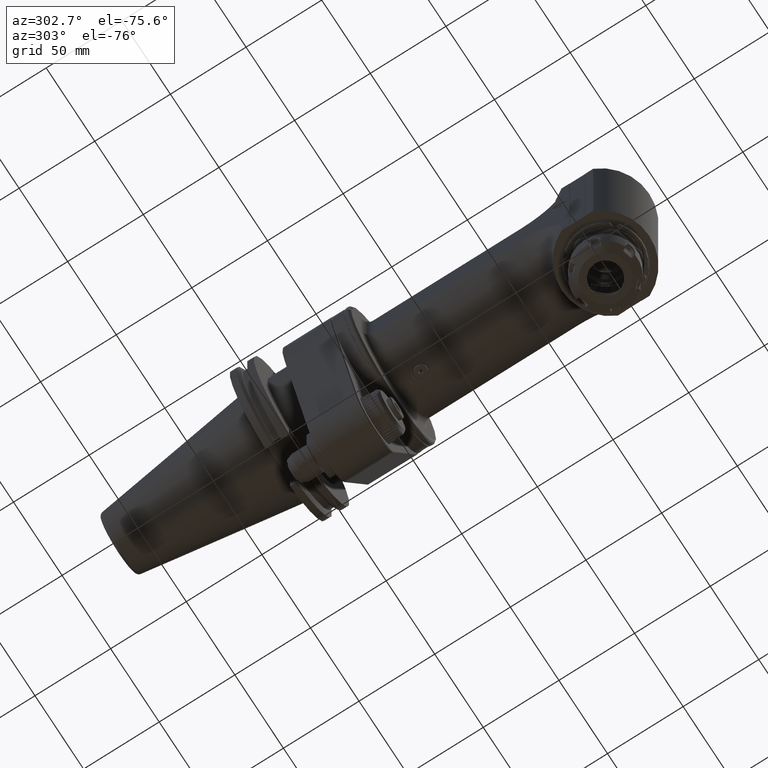
[diagram: clean part render]
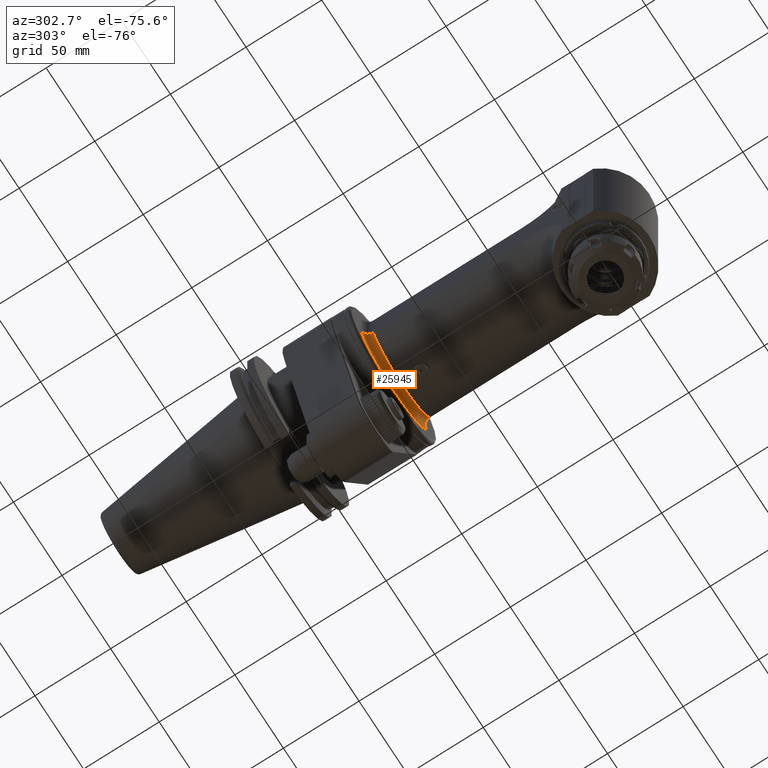
[diagram: same view with one face highlighted and labeled with its STEP entity id]
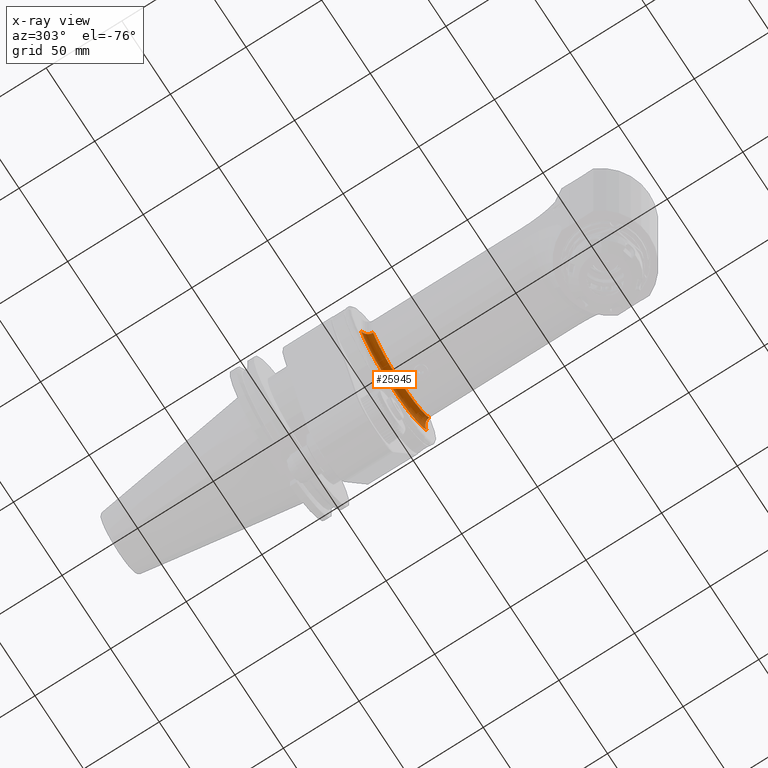
[diagram: x-ray of the same camera — body ghosted, the highlighted face saturated]
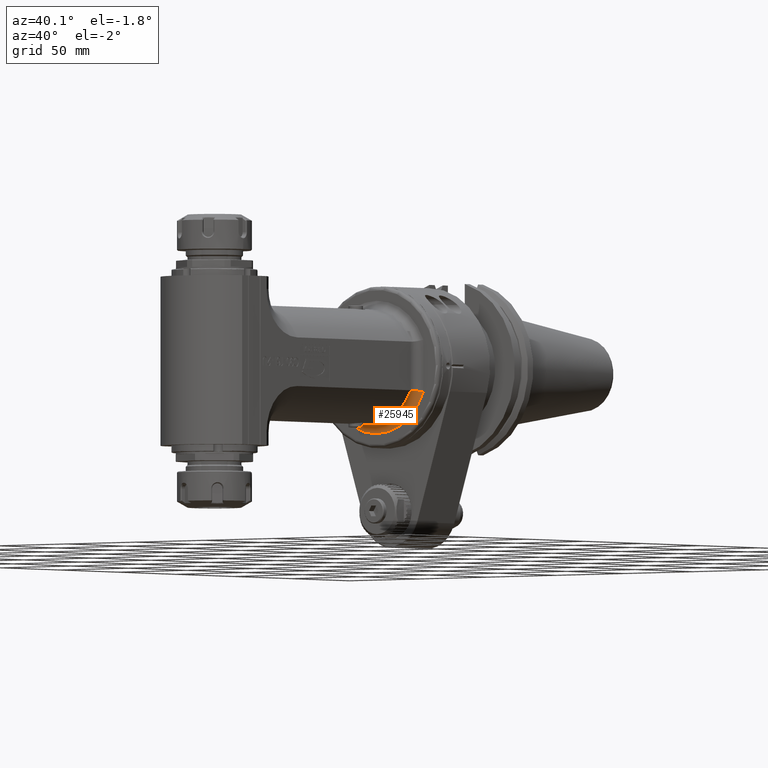
[diagram: same view with one face highlighted and labeled with its STEP entity id]
A machine part, auxiliary view. The second image highlights one B-rep face of the part: STEP entity #25945.
The next image is the same camera in x-ray: the body ghosted, the highlighted face saturated — about 0% of this face is hidden behind the body in this view.
A second angle (auxiliary view) of the same face is appended — the face is thin or edge-on in the first view.
In plain terms, the highlighted toroidal blend (fillet) surface has major radius 37 mm and minor (blend) radius 5 mm.
Its self-contained STEP definition (entity closure, byte-faithful):
#416=TOROIDAL_SURFACE('',#28151,37.,5.);
#1628=CIRCLE('',#28150,32.);
#1629=CIRCLE('',#28152,37.);
#2344=B_SPLINE_CURVE_WITH_KNOTS('',3,(#42059,#42060,#42061,#42062,#42063,
#42064,#42065,#42066,#42067,#42068,#42069,#42070,#42071,#42072,#42073,#42074,
#42075,#42076,#42077,#42078,#42079,#42080,#42081,#42082,#42083,#42084,#42085,
#42086,#42087,#42088,#42089,#42090,#42091,#42092,#42093,#42094,#42095,#42096,
#42097,#42098,#42099,#42100,#42101,#42102,#42103,#42104,#42105,#42106,#42107,
#42108,#42109,#42110,#42111,#42112,#42113,#42114,#42115,#42116,#42117,#42118,
#42119,#42120,#42121,#42122,#42123,#42124,#42125,#42126,#42127,#42128,#42129,
#42130,#42131,#42132,#42133,#42134,#42135,#42136,#42137,#42138,#42139,#42140,
#42141,#42142,#42143,#42144,#42145,#42146,#42147,#42148,#42149,#42150,#42151,
#42152,#42153,#42154,#42155,#42156,#42157,#42158,#42159,#42160,#42161),
 .UNSPECIFIED.,.F.,.F.,(4,3,3,3,3,3,3,3,3,3,3,3,3,3,3,3,3,3,3,3,3,3,3,3,
3,3,3,3,3,3,3,3,3,3,4),(0.,0.02941176470588,0.05882352941176,0.08823529411765,
0.1176470588235,0.1470588235294,0.1764705882353,0.2058823529412,0.2352941176471,
0.2647058823529,0.2941176470588,0.3235294117647,0.3529411764706,0.3823529411765,
0.4117647058824,0.4411764705882,0.4705882352941,0.5,0.5294117647059,0.5588235294118,
0.5882352941176,0.6176470588235,0.6470588235294,0.6764705882353,0.7058823529412,
0.7352941176471,0.7647058823529,0.7941176470588,0.8235294117647,0.8529411764706,
0.8823529411765,0.9117647058824,0.9411764705882,0.9705882352941,1.),
 .UNSPECIFIED.);
#2345=B_SPLINE_CURVE_WITH_KNOTS('',3,(#42164,#42165,#42166,#42167,#42168,
#42169,#42170,#42171,#42172,#42173,#42174,#42175,#42176,#42177,#42178,#42179,
#42180,#42181,#42182,#42183,#42184,#42185,#42186,#42187,#42188,#42189,#42190,
#42191,#42192,#42193,#42194,#42195,#42196,#42197,#42198,#42199,#42200,#42201,
#42202,#42203,#42204,#42205,#42206,#42207,#42208,#42209,#42210,#42211,#42212,
#42213,#42214,#42215,#42216,#42217,#42218,#42219,#42220,#42221,#42222,#42223,
#42224,#42225,#42226,#42227,#42228,#42229,#42230,#42231,#42232,#42233,#42234,
#42235,#42236,#42237,#42238,#42239,#42240,#42241,#42242,#42243,#42244,#42245,
#42246,#42247,#42248,#42249,#42250,#42251,#42252,#42253,#42254,#42255,#42256,
#42257,#42258,#42259,#42260,#42261,#42262,#42263,#42264,#42265,#42266),
 .UNSPECIFIED.,.F.,.F.,(4,3,3,3,3,3,3,3,3,3,3,3,3,3,3,3,3,3,3,3,3,3,3,3,
3,3,3,3,3,3,3,3,3,3,4),(0.,0.02941176470588,0.05882352941176,0.08823529411765,
0.1176470588235,0.1470588235294,0.1764705882353,0.2058823529412,0.2352941176471,
0.2647058823529,0.2941176470588,0.3235294117647,0.3529411764706,0.3823529411765,
0.4117647058824,0.4411764705882,0.4705882352941,0.5,0.5294117647059,0.5588235294118,
0.5882352941176,0.6176470588235,0.6470588235294,0.6764705882353,0.7058823529412,
0.7352941176471,0.7647058823529,0.7941176470588,0.8235294117647,0.8529411764706,
0.8823529411765,0.9117647058824,0.9411764705882,0.9705882352941,1.),
 .UNSPECIFIED.);
#3610=FACE_OUTER_BOUND('',#5221,.T.);
#5221=EDGE_LOOP('',(#19799,#19800,#19801,#19802));
#11199=VERTEX_POINT('',#41542);
#11346=VERTEX_POINT('',#41982);
#11352=VERTEX_POINT('',#42058);
#11353=VERTEX_POINT('',#42162);
#14455=EDGE_CURVE('',#11199,#11346,#1628,.T.);
#14458=EDGE_CURVE('',#11346,#11352,#2344,.T.);
#14459=EDGE_CURVE('',#11353,#11352,#1629,.T.);
#14460=EDGE_CURVE('',#11199,#11353,#2345,.T.);
#19799=ORIENTED_EDGE('',*,*,#14455,.T.);
#19800=ORIENTED_EDGE('',*,*,#14458,.T.);
#19801=ORIENTED_EDGE('',*,*,#14459,.F.);
#19802=ORIENTED_EDGE('',*,*,#14460,.F.);
#25945=ADVANCED_FACE('',(#3610),#416,.F.);
#28150=AXIS2_PLACEMENT_3D('',#42017,#32784,#32785);
#28151=AXIS2_PLACEMENT_3D('',#42057,#32786,#32787);
#28152=AXIS2_PLACEMENT_3D('',#42163,#32788,#32789);
#32784=DIRECTION('center_axis',(0.,1.,0.));
#32785=DIRECTION('ref_axis',(0.906250000000018,0.,-0.422742164327108));
#32786=DIRECTION('center_axis',(0.,-1.,0.));
#32787=DIRECTION('ref_axis',(0.999996080002561,0.,-0.00279999634133489));
#32788=DIRECTION('center_axis',(0.,1.,0.));
#32789=DIRECTION('ref_axis',(0.918891136606388,0.,-0.394511190039295));
#41542=CARTESIAN_POINT('',(29.,-41.8,-13.52774925847));
#41982=CARTESIAN_POINT('',(-29.,-41.8,-13.52774925847));
#42017=CARTESIAN_POINT('Origin',(0.,-41.8,0.));
#42057=CARTESIAN_POINT('Origin',(0.,-41.8,0.));
#42058=CARTESIAN_POINT('',(-34.000000010906,-36.8,-14.5945194662715));
#42059=CARTESIAN_POINT('Ctrl Pts',(-29.,-41.8,-13.52774925847));
#42060=CARTESIAN_POINT('Ctrl Pts',(-29.,-41.72418192508,-13.52774925847));
#42061=CARTESIAN_POINT('Ctrl Pts',(-29.0017244290842,-41.6483472502185,
-13.52813157057));
#42062=CARTESIAN_POINT('Ctrl Pts',(-29.0051760601472,-41.5725493243067,
-13.5288970859));
#42063=CARTESIAN_POINT('Ctrl Pts',(-29.0086276912102,-41.4967513983949,
-13.52966260123));
#42064=CARTESIAN_POINT('Ctrl Pts',(-29.0138080622443,-41.4209902589951,
-13.53081131979));
#42065=CARTESIAN_POINT('Ctrl Pts',(-29.0207071536495,-41.34542024871,-13.5323406298383));
#42066=CARTESIAN_POINT('Ctrl Pts',(-29.0276062450548,-41.2698502384248,
-13.5338699398867));
#42067=CARTESIAN_POINT('Ctrl Pts',(-29.0362219637616,-41.1944711489364,
-13.5357798414233));
#42068=CARTESIAN_POINT('Ctrl Pts',(-29.0465521118748,-41.1192988764313,
-13.5380690156067));
#42069=CARTESIAN_POINT('Ctrl Pts',(-29.056882259988,-41.0441266039263,-13.54035818979));
#42070=CARTESIAN_POINT('Ctrl Pts',(-29.0689274042206,-40.9691612843078,
-13.54302663662));
#42071=CARTESIAN_POINT('Ctrl Pts',(-29.0826844002213,-40.8944574597664,
-13.546073468035));
#42072=CARTESIAN_POINT('Ctrl Pts',(-29.096441396222,-40.819753635225,-13.54912029945));
#42073=CARTESIAN_POINT('Ctrl Pts',(-29.1119117771607,-40.7453115407275,
-13.55254551545));
#42074=CARTESIAN_POINT('Ctrl Pts',(-29.1290656058376,-40.6712847446032,
-13.5563414546483));
#42075=CARTESIAN_POINT('Ctrl Pts',(-29.1462194345144,-40.5972579484788,
-13.5601373938467));
#42076=CARTESIAN_POINT('Ctrl Pts',(-29.1650543798995,-40.5236459037193,
-13.5643040562433));
#42077=CARTESIAN_POINT('Ctrl Pts',(-29.1855727687842,-40.4504480612707,
-13.5688406510167));
#42078=CARTESIAN_POINT('Ctrl Pts',(-29.2060911576689,-40.3772502188222,
-13.57337724579));
#42079=CARTESIAN_POINT('Ctrl Pts',(-29.2282941121811,-40.304466951918,-13.57828377294));
#42080=CARTESIAN_POINT('Ctrl Pts',(-29.2521666572474,-40.2321739415846,
-13.58355623331));
#42081=CARTESIAN_POINT('Ctrl Pts',(-29.2760392023136,-40.1598809312512,
-13.58882869368));
#42082=CARTESIAN_POINT('Ctrl Pts',(-29.3015824387927,-40.0880784795547,
-13.59446708727));
#42083=CARTESIAN_POINT('Ctrl Pts',(-29.3287483717044,-40.0169104831372,
-13.6004591918867));
#42084=CARTESIAN_POINT('Ctrl Pts',(-29.3559143046161,-39.9457424867199,
-13.6064512965033));
#42085=CARTESIAN_POINT('Ctrl Pts',(-29.3847005911779,-39.8752080605227,
-13.6127971121467));
#42086=CARTESIAN_POINT('Ctrl Pts',(-29.4151160974488,-39.8052971148246,
-13.61949692847));
#42087=CARTESIAN_POINT('Ctrl Pts',(-29.4455316037199,-39.7353861691262,
-13.6261967447933));
#42088=CARTESIAN_POINT('Ctrl Pts',(-29.4775778852677,-39.6660994356747,
-13.6332505617967));
#42089=CARTESIAN_POINT('Ctrl Pts',(-29.5112213414089,-39.5975318040487,
-13.640649839665));
#42090=CARTESIAN_POINT('Ctrl Pts',(-29.5448647975502,-39.5289641724226,
-13.6480491175333));
#42091=CARTESIAN_POINT('Ctrl Pts',(-29.5801060364039,-39.4611158669186,
-13.6557938562667));
#42092=CARTESIAN_POINT('Ctrl Pts',(-29.6168826856514,-39.3941150051056,
-13.66386827051));
#42093=CARTESIAN_POINT('Ctrl Pts',(-29.653659334899,-39.3271141432926,-13.6719426847533));
#42094=CARTESIAN_POINT('Ctrl Pts',(-29.6919692237087,-39.2609595610807,
-13.6803467745067));
#42095=CARTESIAN_POINT('Ctrl Pts',(-29.7318270887285,-39.1956382740701,
-13.6890818732467));
#42096=CARTESIAN_POINT('Ctrl Pts',(-29.7716849537484,-39.1303169870595,
-13.6978169719867));
#42097=CARTESIAN_POINT('Ctrl Pts',(-29.8130926297695,-39.0658301621019,
-13.7068830797133));
#42098=CARTESIAN_POINT('Ctrl Pts',(-29.8559918085746,-39.0022873433108,
-13.71626592231));
#42099=CARTESIAN_POINT('Ctrl Pts',(-29.8988909873796,-38.9387445245197,
-13.7256487649067));
#42100=CARTESIAN_POINT('Ctrl Pts',(-29.9432817551433,-38.8761456853254,
-13.7353483423734));
#42101=CARTESIAN_POINT('Ctrl Pts',(-29.9890937205897,-38.8145970426445,
-13.7453469335484));
#42102=CARTESIAN_POINT('Ctrl Pts',(-30.0349056860359,-38.7530483999637,
-13.7553455247233));
#42103=CARTESIAN_POINT('Ctrl Pts',(-30.0821370572062,-38.6925486690109,
-13.7656431296067));
#42104=CARTESIAN_POINT('Ctrl Pts',(-30.1308037739468,-38.6330897448308,
-13.7762412378583));
#42105=CARTESIAN_POINT('Ctrl Pts',(-30.1794704906877,-38.5736308206505,
-13.78683934611));
#42106=CARTESIAN_POINT('Ctrl Pts',(-30.2295744608294,-38.5152142969271,
-13.79773795773));
#42107=CARTESIAN_POINT('Ctrl Pts',(-30.281028294819,-38.4579572929025,-13.8089163140667));
#42108=CARTESIAN_POINT('Ctrl Pts',(-30.3324821288087,-38.400700288878,-13.8200946704033));
#42109=CARTESIAN_POINT('Ctrl Pts',(-30.385285393723,-38.3446023252333,-13.8315527714567));
#42110=CARTESIAN_POINT('Ctrl Pts',(-30.4393696915264,-38.2897419174113,
-13.84327338996));
#42111=CARTESIAN_POINT('Ctrl Pts',(-30.4934539893297,-38.2348815095894,
-13.8549940084633));
#42112=CARTESIAN_POINT('Ctrl Pts',(-30.5488181148313,-38.1812575443873,
-13.8669771444167));
#42113=CARTESIAN_POINT('Ctrl Pts',(-30.605469491689,-38.1288744739323,-13.879222490835));
#42114=CARTESIAN_POINT('Ctrl Pts',(-30.6621208685467,-38.0764914034773,
-13.8914678372534));
#42115=CARTESIAN_POINT('Ctrl Pts',(-30.7200612415244,-38.0253511180441,
-13.9039753941367));
#42116=CARTESIAN_POINT('Ctrl Pts',(-30.7791728495994,-37.9755690008522,
-13.9167178996184));
#42117=CARTESIAN_POINT('Ctrl Pts',(-30.8382844576742,-37.9257868836605,
-13.9294604051));
#42118=CARTESIAN_POINT('Ctrl Pts',(-30.8985664052986,-37.8773617871909,
-13.94243785918));
#42119=CARTESIAN_POINT('Ctrl Pts',(-30.9599660921564,-37.8303408409334,
-13.9556367304733));
#42120=CARTESIAN_POINT('Ctrl Pts',(-31.0213657790144,-37.7833198946758,
-13.9688356017666));
#42121=CARTESIAN_POINT('Ctrl Pts',(-31.0838827440478,-37.737702602177,-13.9822558902733));
#42122=CARTESIAN_POINT('Ctrl Pts',(-31.1475001783677,-37.6935118692991,
-13.9958922927467));
#42123=CARTESIAN_POINT('Ctrl Pts',(-31.2111176126875,-37.6493211364212,
-14.00952869522));
#42124=CARTESIAN_POINT('Ctrl Pts',(-31.275836855587,-37.6065588418523,-14.02338121166));
#42125=CARTESIAN_POINT('Ctrl Pts',(-31.3415143472242,-37.5653271632881,
-14.037417358025));
#42126=CARTESIAN_POINT('Ctrl Pts',(-31.4071918388615,-37.5240954847239,
-14.05145350439));
#42127=CARTESIAN_POINT('Ctrl Pts',(-31.4738263791986,-37.484392459296,-14.06567328068));
#42128=CARTESIAN_POINT('Ctrl Pts',(-31.5413959518392,-37.4462354066432,
-14.0800701600167));
#42129=CARTESIAN_POINT('Ctrl Pts',(-31.6089655244798,-37.4080783539904,
-14.0944670393533));
#42130=CARTESIAN_POINT('Ctrl Pts',(-31.677470433427,-37.3714679431011,-14.1090410217367));
#42131=CARTESIAN_POINT('Ctrl Pts',(-31.7468482759378,-37.3364467844154,
-14.1237774570283));
#42132=CARTESIAN_POINT('Ctrl Pts',(-31.8162261184486,-37.3014256257297,
-14.13851389232));
#42133=CARTESIAN_POINT('Ctrl Pts',(-31.8864775882684,-37.2679949686472,
-14.15341278052));
#42134=CARTESIAN_POINT('Ctrl Pts',(-31.9574531820618,-37.236229355398,-14.1684409548934));
#42135=CARTESIAN_POINT('Ctrl Pts',(-32.028428775855,-37.204463742149,-14.1834691292667));
#42136=CARTESIAN_POINT('Ctrl Pts',(-32.1001274307338,-37.1743608128627,
-14.1986265898133));
#42137=CARTESIAN_POINT('Ctrl Pts',(-32.1725498165013,-37.145923740759,-14.2139121602366));
#42138=CARTESIAN_POINT('Ctrl Pts',(-32.244972202269,-37.1174866686552,-14.22919773066));
#42139=CARTESIAN_POINT('Ctrl Pts',(-32.3181189391685,-37.0907171711728,
-14.24461141096));
#42140=CARTESIAN_POINT('Ctrl Pts',(-32.3918814704659,-37.0656621587629,
-14.2601293410267));
#42141=CARTESIAN_POINT('Ctrl Pts',(-32.4656440017634,-37.0406071463531,
-14.2756472710933));
#42142=CARTESIAN_POINT('Ctrl Pts',(-32.5400225146478,-37.0172669542259,
-14.2912694509267));
#42143=CARTESIAN_POINT('Ctrl Pts',(-32.6148813638592,-36.9956846102888,
-14.3069664214033));
#42144=CARTESIAN_POINT('Ctrl Pts',(-32.6897402130705,-36.9741022663518,
-14.32266339188));
#42145=CARTESIAN_POINT('Ctrl Pts',(-32.7650787304504,-36.9542755798799,
-14.338435153));
#42146=CARTESIAN_POINT('Ctrl Pts',(-32.8409021293779,-36.9362059946664,
-14.3542820362533));
#42147=CARTESIAN_POINT('Ctrl Pts',(-32.9167255283054,-36.9181364094529,
-14.3701289195067));
#42148=CARTESIAN_POINT('Ctrl Pts',(-32.9930343552683,-36.901826333523,-14.3860509248933));
#42149=CARTESIAN_POINT('Ctrl Pts',(-33.0696790681133,-36.8873120429144,
-14.40201633136));
#42150=CARTESIAN_POINT('Ctrl Pts',(-33.1463237809583,-36.8727977523059,
-14.4179817378267));
#42151=CARTESIAN_POINT('Ctrl Pts',(-33.2233043239086,-36.8600786045104,
-14.4339905453734));
#42152=CARTESIAN_POINT('Ctrl Pts',(-33.3005091206106,-36.8491705230688,
-14.4500191945784));
#42153=CARTESIAN_POINT('Ctrl Pts',(-33.3777139173123,-36.8382624416272,
-14.4660478437834));
#42154=CARTESIAN_POINT('Ctrl Pts',(-33.4551427128858,-36.8291639609139,
-14.4820963346467));
#42155=CARTESIAN_POINT('Ctrl Pts',(-33.5327783863267,-36.8218774659801,
-14.4981609288183));
#42156=CARTESIAN_POINT('Ctrl Pts',(-33.610414059768,-36.8145909710463,-14.51422552299));
#42157=CARTESIAN_POINT('Ctrl Pts',(-33.6882567991496,-36.8091184537725,
-14.53030622047));
#42158=CARTESIAN_POINT('Ctrl Pts',(-33.7661614083667,-36.8054710419237,
-14.546373034205));
#42159=CARTESIAN_POINT('Ctrl Pts',(-33.8440660175837,-36.8018236300748,
-14.56243984794));
#42160=CARTESIAN_POINT('Ctrl Pts',(-33.92203246995,-36.8,-14.57849277793));
#42161=CARTESIAN_POINT('Ctrl Pts',(-34.,-36.8,-14.59451951933));
#42162=CARTESIAN_POINT('',(33.9999999754963,-36.8,-14.5945196385333));
#42163=CARTESIAN_POINT('Origin',(0.,-36.8,0.));
#42164=CARTESIAN_POINT('Ctrl Pts',(29.,-41.8,-13.52774925847));
#42165=CARTESIAN_POINT('Ctrl Pts',(29.,-41.72418192508,-13.52774925847));
#42166=CARTESIAN_POINT('Ctrl Pts',(29.0017244290842,-41.6483472502185,-13.52813157057));
#42167=CARTESIAN_POINT('Ctrl Pts',(29.0051760601472,-41.5725493243067,-13.5288970859));
#42168=CARTESIAN_POINT('Ctrl Pts',(29.0086276912102,-41.4967513983949,-13.52966260123));
#42169=CARTESIAN_POINT('Ctrl Pts',(29.0138080622443,-41.4209902589951,-13.53081131979));
#42170=CARTESIAN_POINT('Ctrl Pts',(29.0207071536495,-41.34542024871,-13.5323406298383));
#42171=CARTESIAN_POINT('Ctrl Pts',(29.0276062450548,-41.2698502384248,-13.5338699398867));
#42172=CARTESIAN_POINT('Ctrl Pts',(29.0362219637616,-41.1944711489364,-13.5357798414233));
#42173=CARTESIAN_POINT('Ctrl Pts',(29.0465521118748,-41.1192988764313,-13.5380690156067));
#42174=CARTESIAN_POINT('Ctrl Pts',(29.056882259988,-41.0441266039263,-13.54035818979));
#42175=CARTESIAN_POINT('Ctrl Pts',(29.0689274042206,-40.9691612843078,-13.54302663662));
#42176=CARTESIAN_POINT('Ctrl Pts',(29.0826844002213,-40.8944574597664,-13.546073468035));
#42177=CARTESIAN_POINT('Ctrl Pts',(29.096441396222,-40.819753635225,-13.54912029945));
#42178=CARTESIAN_POINT('Ctrl Pts',(29.1119117771607,-40.7453115407275,-13.55254551545));
#42179=CARTESIAN_POINT('Ctrl Pts',(29.1290656058376,-40.6712847446032,-13.5563414546483));
#42180=CARTESIAN_POINT('Ctrl Pts',(29.1462194345144,-40.5972579484788,-13.5601373938467));
#42181=CARTESIAN_POINT('Ctrl Pts',(29.1650543798995,-40.5236459037193,-13.5643040562433));
#42182=CARTESIAN_POINT('Ctrl Pts',(29.1855727687842,-40.4504480612707,-13.5688406510167));
#42183=CARTESIAN_POINT('Ctrl Pts',(29.2060911576689,-40.3772502188222,-13.57337724579));
#42184=CARTESIAN_POINT('Ctrl Pts',(29.2282941121811,-40.304466951918,-13.57828377294));
#42185=CARTESIAN_POINT('Ctrl Pts',(29.2521666572474,-40.2321739415846,-13.58355623331));
#42186=CARTESIAN_POINT('Ctrl Pts',(29.2760392023136,-40.1598809312512,-13.58882869368));
#42187=CARTESIAN_POINT('Ctrl Pts',(29.3015824387927,-40.0880784795547,-13.59446708727));
#42188=CARTESIAN_POINT('Ctrl Pts',(29.3287483717044,-40.0169104831372,-13.6004591918867));
#42189=CARTESIAN_POINT('Ctrl Pts',(29.3559143046161,-39.9457424867199,-13.6064512965033));
#42190=CARTESIAN_POINT('Ctrl Pts',(29.3847005911779,-39.8752080605227,-13.6127971121467));
#42191=CARTESIAN_POINT('Ctrl Pts',(29.4151160974488,-39.8052971148246,-13.61949692847));
#42192=CARTESIAN_POINT('Ctrl Pts',(29.4455316037199,-39.7353861691262,-13.6261967447933));
#42193=CARTESIAN_POINT('Ctrl Pts',(29.4775778852677,-39.6660994356747,-13.6332505617967));
#42194=CARTESIAN_POINT('Ctrl Pts',(29.5112213414089,-39.5975318040487,-13.640649839665));
#42195=CARTESIAN_POINT('Ctrl Pts',(29.5448647975502,-39.5289641724226,-13.6480491175333));
#42196=CARTESIAN_POINT('Ctrl Pts',(29.5801060364039,-39.4611158669186,-13.6557938562667));
#42197=CARTESIAN_POINT('Ctrl Pts',(29.6168826856514,-39.3941150051056,-13.66386827051));
#42198=CARTESIAN_POINT('Ctrl Pts',(29.653659334899,-39.3271141432926,-13.6719426847533));
#42199=CARTESIAN_POINT('Ctrl Pts',(29.6919692237087,-39.2609595610807,-13.6803467745067));
#42200=CARTESIAN_POINT('Ctrl Pts',(29.7318270887285,-39.1956382740701,-13.6890818732467));
#42201=CARTESIAN_POINT('Ctrl Pts',(29.7716849537484,-39.1303169870595,-13.6978169719867));
#42202=CARTESIAN_POINT('Ctrl Pts',(29.8130926297695,-39.0658301621019,-13.7068830797133));
#42203=CARTESIAN_POINT('Ctrl Pts',(29.8559918085746,-39.0022873433108,-13.71626592231));
#42204=CARTESIAN_POINT('Ctrl Pts',(29.8988909873796,-38.9387445245197,-13.7256487649067));
#42205=CARTESIAN_POINT('Ctrl Pts',(29.9432817551433,-38.8761456853254,-13.7353483423734));
#42206=CARTESIAN_POINT('Ctrl Pts',(29.9890937205897,-38.8145970426445,-13.7453469335484));
#42207=CARTESIAN_POINT('Ctrl Pts',(30.0349056860359,-38.7530483999637,-13.7553455247233));
#42208=CARTESIAN_POINT('Ctrl Pts',(30.0821370572062,-38.6925486690109,-13.7656431296067));
#42209=CARTESIAN_POINT('Ctrl Pts',(30.1308037739468,-38.6330897448308,-13.7762412378583));
#42210=CARTESIAN_POINT('Ctrl Pts',(30.1794704906877,-38.5736308206505,-13.78683934611));
#42211=CARTESIAN_POINT('Ctrl Pts',(30.2295744608294,-38.5152142969271,-13.79773795773));
#42212=CARTESIAN_POINT('Ctrl Pts',(30.281028294819,-38.4579572929025,-13.8089163140667));
#42213=CARTESIAN_POINT('Ctrl Pts',(30.3324821288087,-38.400700288878,-13.8200946704033));
#42214=CARTESIAN_POINT('Ctrl Pts',(30.385285393723,-38.3446023252333,-13.8315527714567));
#42215=CARTESIAN_POINT('Ctrl Pts',(30.4393696915264,-38.2897419174113,-13.84327338996));
#42216=CARTESIAN_POINT('Ctrl Pts',(30.4934539893297,-38.2348815095894,-13.8549940084633));
#42217=CARTESIAN_POINT('Ctrl Pts',(30.5488181148313,-38.1812575443873,-13.8669771444167));
#42218=CARTESIAN_POINT('Ctrl Pts',(30.605469491689,-38.1288744739323,-13.879222490835));
#42219=CARTESIAN_POINT('Ctrl Pts',(30.6621208685467,-38.0764914034773,-13.8914678372534));
#42220=CARTESIAN_POINT('Ctrl Pts',(30.7200612415244,-38.0253511180441,-13.9039753941367));
#42221=CARTESIAN_POINT('Ctrl Pts',(30.7791728495994,-37.9755690008522,-13.9167178996184));
#42222=CARTESIAN_POINT('Ctrl Pts',(30.8382844576742,-37.9257868836605,-13.9294604051));
#42223=CARTESIAN_POINT('Ctrl Pts',(30.8985664052986,-37.8773617871909,-13.94243785918));
#42224=CARTESIAN_POINT('Ctrl Pts',(30.9599660921564,-37.8303408409334,-13.9556367304733));
#42225=CARTESIAN_POINT('Ctrl Pts',(31.0213657790144,-37.7833198946758,-13.9688356017666));
#42226=CARTESIAN_POINT('Ctrl Pts',(31.0838827440478,-37.737702602177,-13.9822558902733));
#42227=CARTESIAN_POINT('Ctrl Pts',(31.1475001783677,-37.6935118692991,-13.9958922927467));
#42228=CARTESIAN_POINT('Ctrl Pts',(31.2111176126875,-37.6493211364212,-14.00952869522));
#42229=CARTESIAN_POINT('Ctrl Pts',(31.275836855587,-37.6065588418523,-14.02338121166));
#42230=CARTESIAN_POINT('Ctrl Pts',(31.3415143472242,-37.5653271632881,-14.037417358025));
#42231=CARTESIAN_POINT('Ctrl Pts',(31.4071918388615,-37.5240954847239,-14.05145350439));
#42232=CARTESIAN_POINT('Ctrl Pts',(31.4738263791986,-37.484392459296,-14.06567328068));
#42233=CARTESIAN_POINT('Ctrl Pts',(31.5413959518392,-37.4462354066432,-14.0800701600167));
#42234=CARTESIAN_POINT('Ctrl Pts',(31.6089655244798,-37.4080783539904,-14.0944670393533));
#42235=CARTESIAN_POINT('Ctrl Pts',(31.677470433427,-37.3714679431011,-14.1090410217367));
#42236=CARTESIAN_POINT('Ctrl Pts',(31.7468482759378,-37.3364467844154,-14.1237774570283));
#42237=CARTESIAN_POINT('Ctrl Pts',(31.8162261184486,-37.3014256257297,-14.13851389232));
#42238=CARTESIAN_POINT('Ctrl Pts',(31.8864775882684,-37.2679949686472,-14.15341278052));
#42239=CARTESIAN_POINT('Ctrl Pts',(31.9574531820618,-37.236229355398,-14.1684409548934));
#42240=CARTESIAN_POINT('Ctrl Pts',(32.028428775855,-37.204463742149,-14.1834691292667));
#42241=CARTESIAN_POINT('Ctrl Pts',(32.1001274307338,-37.1743608128627,-14.1986265898133));
#42242=CARTESIAN_POINT('Ctrl Pts',(32.1725498165013,-37.145923740759,-14.2139121602366));
#42243=CARTESIAN_POINT('Ctrl Pts',(32.244972202269,-37.1174866686552,-14.22919773066));
#42244=CARTESIAN_POINT('Ctrl Pts',(32.3181189391685,-37.0907171711728,-14.24461141096));
#42245=CARTESIAN_POINT('Ctrl Pts',(32.3918814704659,-37.0656621587629,-14.2601293410267));
#42246=CARTESIAN_POINT('Ctrl Pts',(32.4656440017634,-37.0406071463531,-14.2756472710933));
#42247=CARTESIAN_POINT('Ctrl Pts',(32.5400225146478,-37.0172669542259,-14.2912694509267));
#42248=CARTESIAN_POINT('Ctrl Pts',(32.6148813638592,-36.9956846102888,-14.3069664214033));
#42249=CARTESIAN_POINT('Ctrl Pts',(32.6897402130705,-36.9741022663518,-14.32266339188));
#42250=CARTESIAN_POINT('Ctrl Pts',(32.7650787304504,-36.9542755798799,-14.338435153));
#42251=CARTESIAN_POINT('Ctrl Pts',(32.8409021293779,-36.9362059946664,-14.3542820362533));
#42252=CARTESIAN_POINT('Ctrl Pts',(32.9167255283054,-36.9181364094529,-14.3701289195067));
#42253=CARTESIAN_POINT('Ctrl Pts',(32.9930343552683,-36.901826333523,-14.3860509248933));
#42254=CARTESIAN_POINT('Ctrl Pts',(33.0696790681133,-36.8873120429144,-14.40201633136));
#42255=CARTESIAN_POINT('Ctrl Pts',(33.1463237809583,-36.8727977523059,-14.4179817378267));
#42256=CARTESIAN_POINT('Ctrl Pts',(33.2233043239086,-36.8600786045104,-14.4339905453734));
#42257=CARTESIAN_POINT('Ctrl Pts',(33.3005091206106,-36.8491705230688,-14.4500191945784));
#42258=CARTESIAN_POINT('Ctrl Pts',(33.3777139173123,-36.8382624416272,-14.4660478437834));
#42259=CARTESIAN_POINT('Ctrl Pts',(33.4551427128858,-36.8291639609139,-14.4820963346467));
#42260=CARTESIAN_POINT('Ctrl Pts',(33.5327783863267,-36.8218774659801,-14.4981609288183));
#42261=CARTESIAN_POINT('Ctrl Pts',(33.610414059768,-36.8145909710463,-14.51422552299));
#42262=CARTESIAN_POINT('Ctrl Pts',(33.6882567991496,-36.8091184537725,-14.53030622047));
#42263=CARTESIAN_POINT('Ctrl Pts',(33.7661614083667,-36.8054710419237,-14.546373034205));
#42264=CARTESIAN_POINT('Ctrl Pts',(33.8440660175837,-36.8018236300748,-14.56243984794));
#42265=CARTESIAN_POINT('Ctrl Pts',(33.92203246995,-36.8,-14.57849277793));
#42266=CARTESIAN_POINT('Ctrl Pts',(34.,-36.8,-14.59451951933));